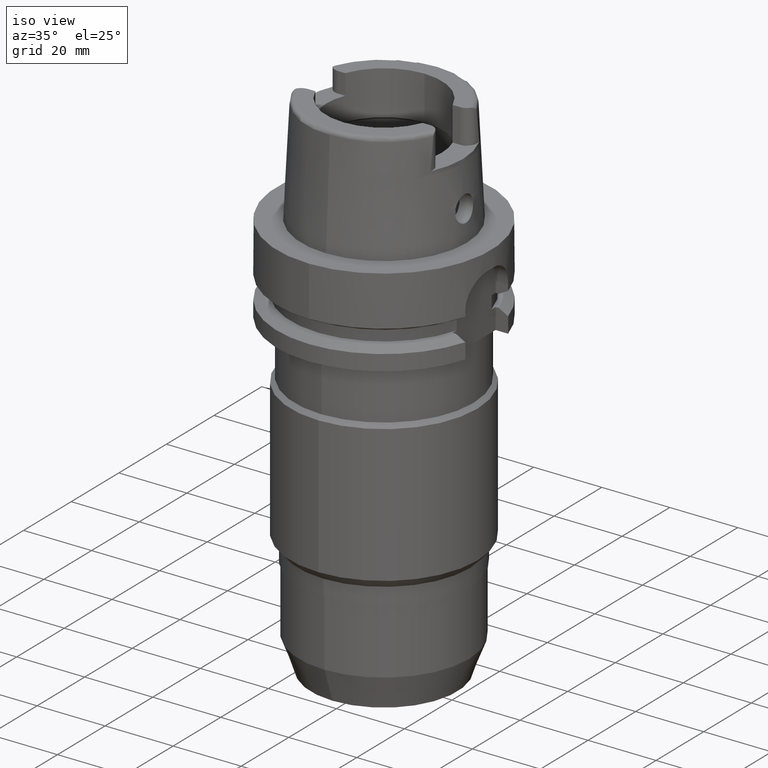
[diagram: clean part render]
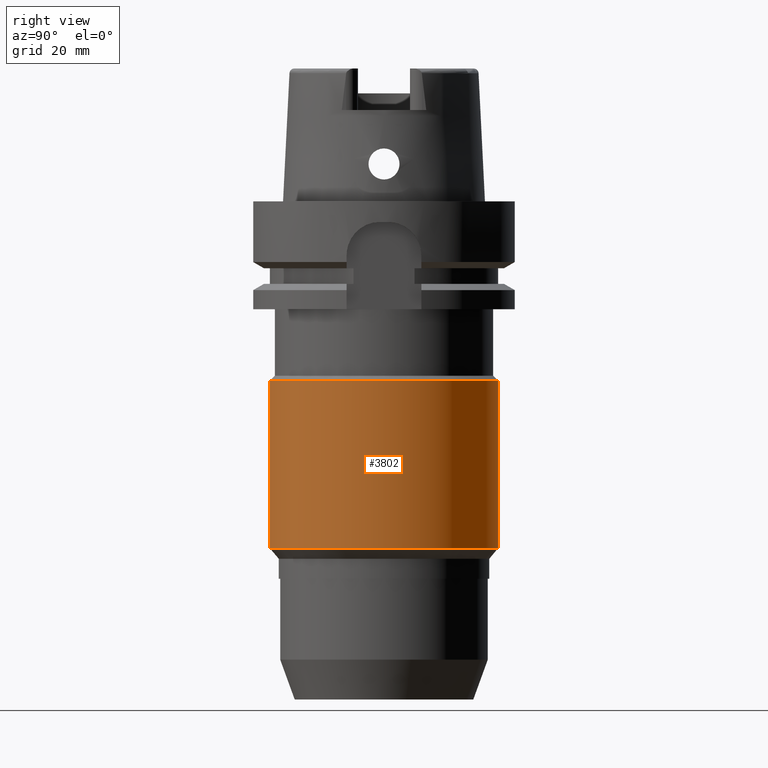
[diagram: tour spotlight — one face highlighted and labeled with its STEP entity id]
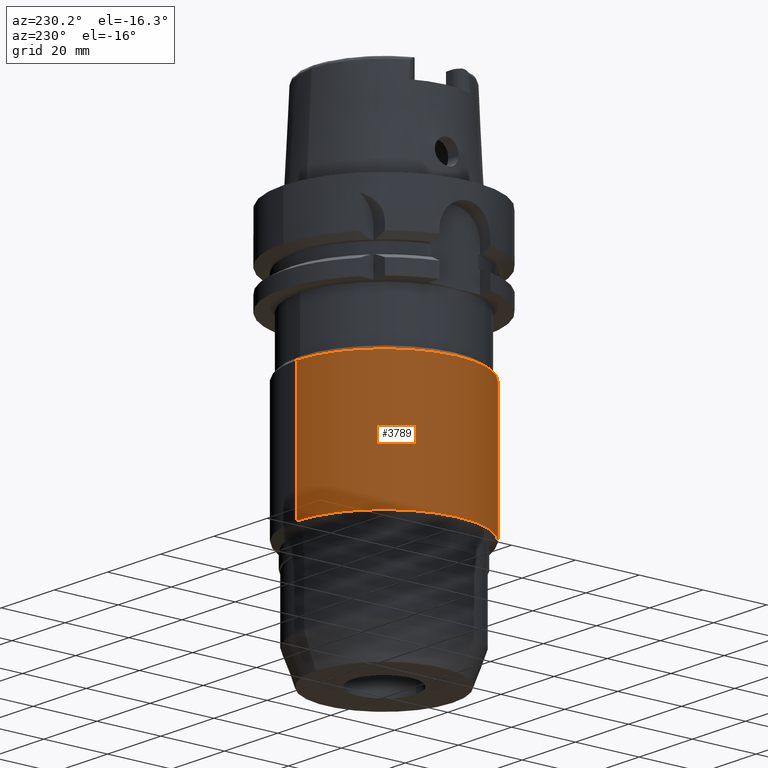
[diagram: tour spotlight — one face highlighted and labeled with its STEP entity id]
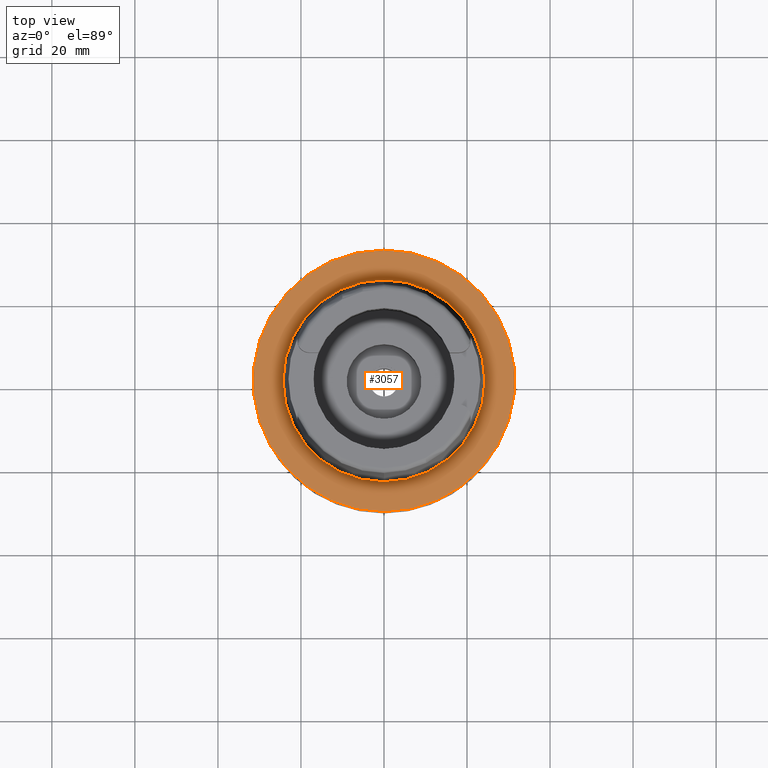
[diagram: tour spotlight — one face highlighted and labeled with its STEP entity id]
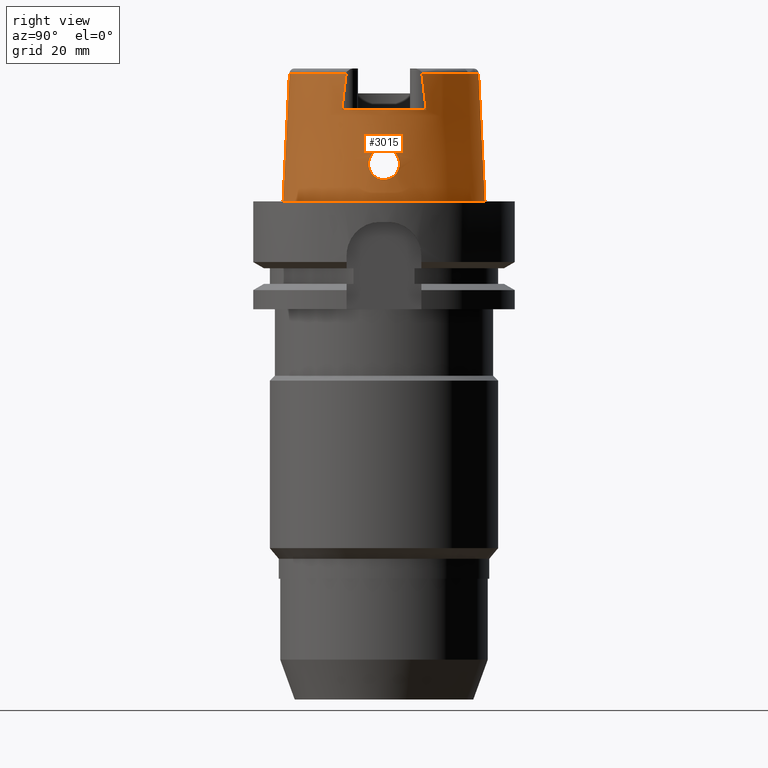
[diagram: tour spotlight — one face highlighted and labeled with its STEP entity id]
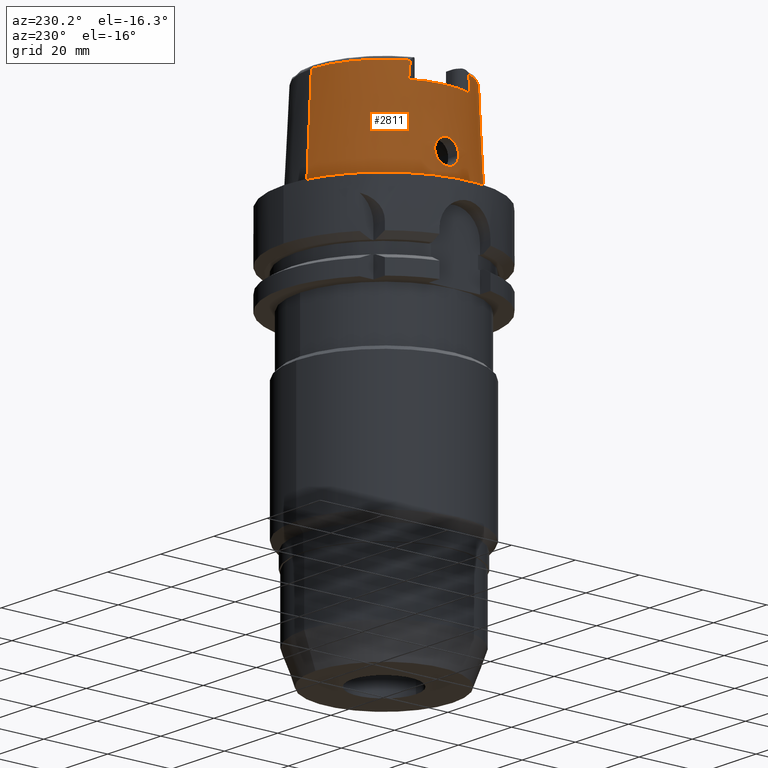
[diagram: tour spotlight — one face highlighted and labeled with its STEP entity id]
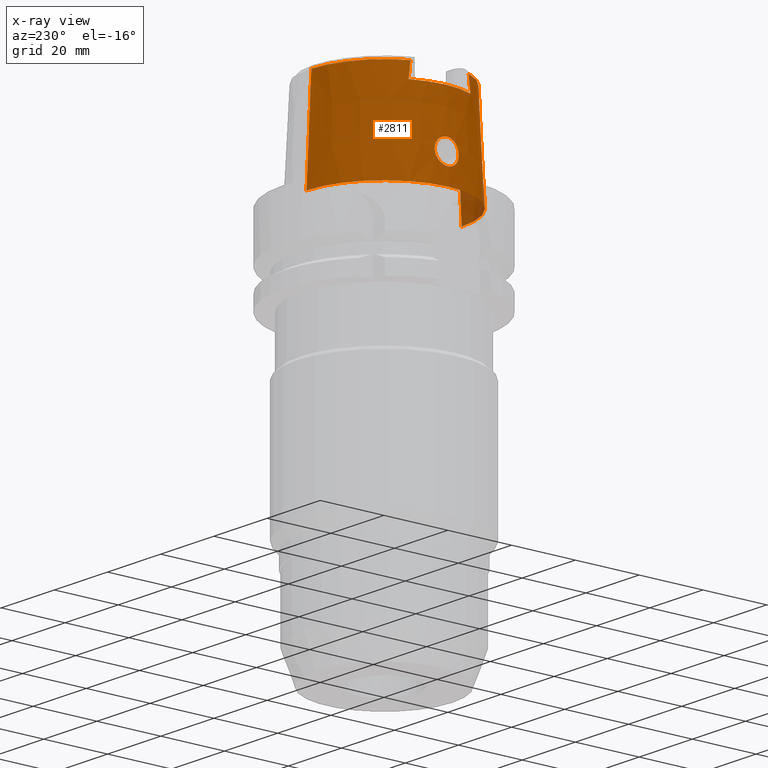
[diagram: x-ray of the same camera — body ghosted, this tour face saturated]
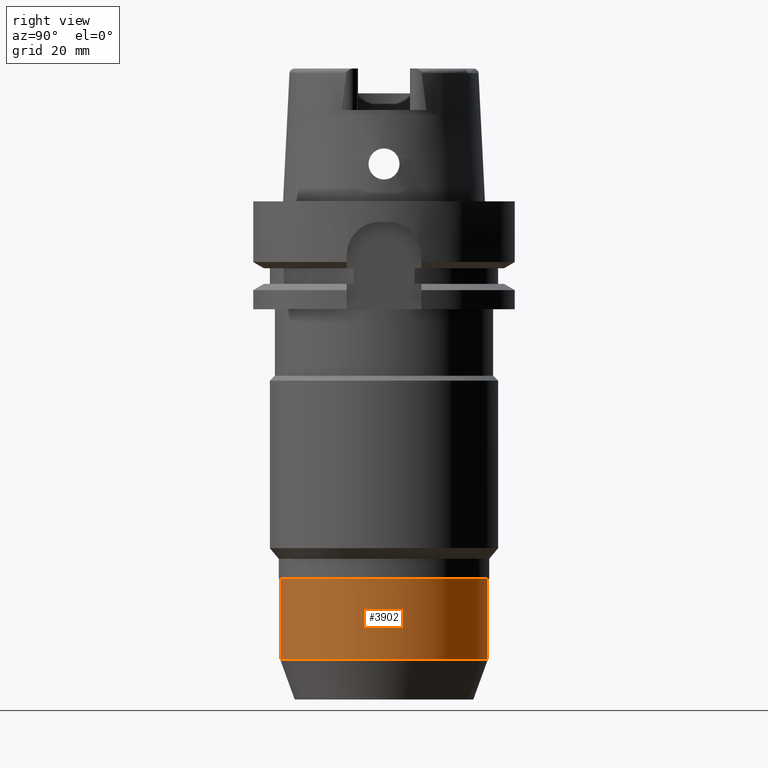
[diagram: tour spotlight — one face highlighted and labeled with its STEP entity id]
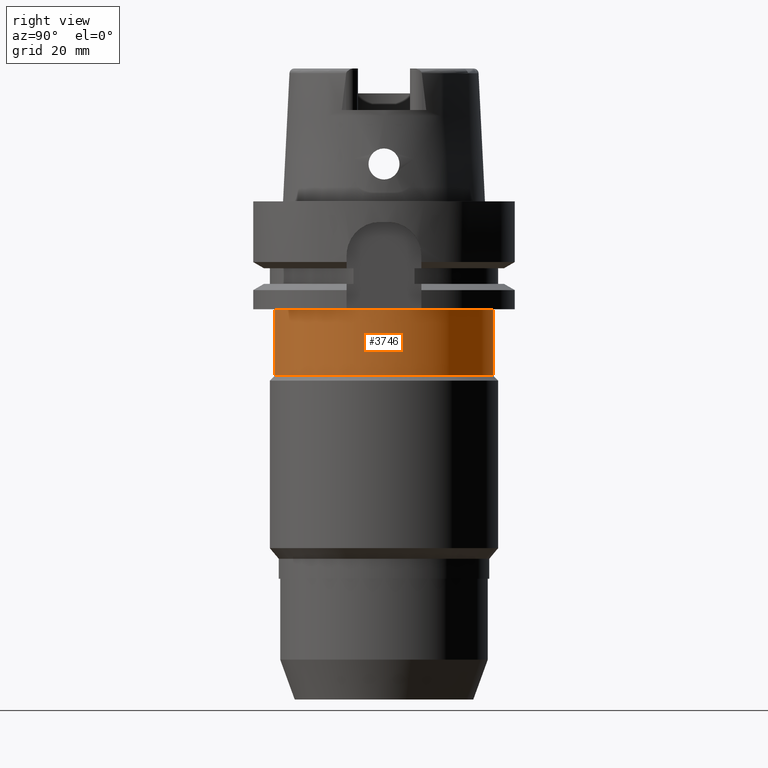
[diagram: tour spotlight — one face highlighted and labeled with its STEP entity id]
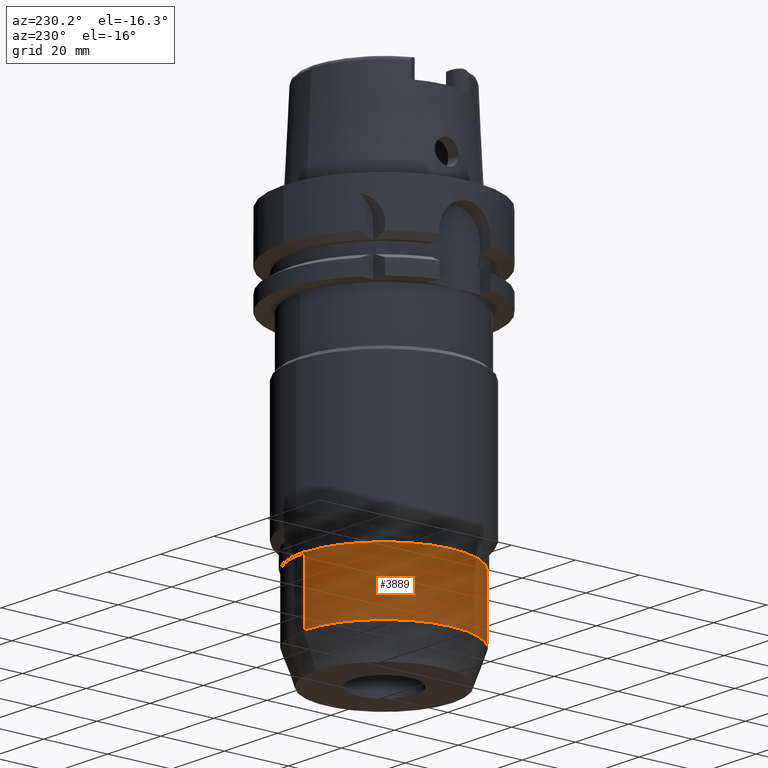
[diagram: tour spotlight — one face highlighted and labeled with its STEP entity id]
A machine part: a face-by-face anatomy tour. The part has 102 B-rep faces; the first image is the clean iso view, then the 8 largest visible faces are spotlighted one at a time (largest first), each with its STEP entity span.

Face 1 — right view, entity #3802. In plain terms, the highlighted cylindrical surface (partial cylindrical patch) has radius 27.5 mm, axis along (0, 0, 1).
Definition (entity closure, byte-faithful):
#1634=CARTESIAN_POINT('',(0.E0,0.E0,-4.32E1));
#1635=DIRECTION('',(0.E0,0.E0,-1.E0));
#1636=DIRECTION('',(0.E0,1.E0,0.E0));
#1637=AXIS2_PLACEMENT_3D('',#1634,#1635,#1636);
#1673=DIRECTION('',(0.E0,0.E0,-1.E0));
#1674=VECTOR('',#1673,4.033772977592E1);
#1675=CARTESIAN_POINT('',(0.E0,-2.75E1,-4.32E1));
#1676=LINE('',#1675,#1674);
#1680=DIRECTION('',(0.E0,0.E0,-1.E0));
#1681=VECTOR('',#1680,4.033772977592E1);
#1682=CARTESIAN_POINT('',(0.E0,2.75E1,-4.32E1));
#1683=LINE('',#1682,#1681);
#1702=CARTESIAN_POINT('',(0.E0,0.E0,-8.353772977592E1));
#1703=DIRECTION('',(0.E0,0.E0,1.E0));
#1704=DIRECTION('',(0.E0,-1.E0,0.E0));
#1705=AXIS2_PLACEMENT_3D('',#1702,#1703,#1704);
#2506=CARTESIAN_POINT('',(0.E0,2.75E1,-8.353772977592E1));
#2507=VERTEX_POINT('',#2506);
#2508=CARTESIAN_POINT('',(0.E0,-2.75E1,-8.353772977592E1));
#2509=VERTEX_POINT('',#2508);
#2510=CARTESIAN_POINT('',(0.E0,2.75E1,-4.32E1));
#2511=VERTEX_POINT('',#2510);
#2512=CARTESIAN_POINT('',(0.E0,-2.75E1,-4.32E1));
#2513=VERTEX_POINT('',#2512);
#3790=CARTESIAN_POINT('',(0.E0,0.E0,-1.276E2));
#3791=DIRECTION('',(0.E0,0.E0,1.E0));
#3792=DIRECTION('',(0.E0,1.E0,0.E0));
#3793=AXIS2_PLACEMENT_3D('',#3790,#3791,#3792);
#3794=CYLINDRICAL_SURFACE('',#3793,2.75E1);
#3795=ORIENTED_EDGE('',*,*,#3780,.T.);
#3797=ORIENTED_EDGE('',*,*,#3796,.F.);
#3798=ORIENTED_EDGE('',*,*,#3783,.F.);
#3799=ORIENTED_EDGE('',*,*,#3754,.F.);
#3800=EDGE_LOOP('',(#3795,#3797,#3798,#3799));
#3801=FACE_OUTER_BOUND('',#3800,.F.);
#1638=CIRCLE('',#1637,2.75E1);
#1706=CIRCLE('',#1705,2.75E1);
#3754=EDGE_CURVE('',#2511,#2513,#1638,.T.);
#3780=EDGE_CURVE('',#2511,#2507,#1683,.T.);
#3783=EDGE_CURVE('',#2513,#2509,#1676,.T.);
#3796=EDGE_CURVE('',#2509,#2507,#1706,.T.);
#3802=ADVANCED_FACE('',(#3801),#3794,.T.);

Face 2 — auxiliary view, entity #3789. In plain terms, the highlighted cylindrical surface (partial cylindrical patch) has radius 27.5 mm, axis along (0, 0, 1).
Definition (entity closure, byte-faithful):
#1665=CARTESIAN_POINT('',(0.E0,0.E0,-4.32E1));
#1666=DIRECTION('',(0.E0,0.E0,-1.E0));
#1667=DIRECTION('',(0.E0,-1.E0,0.E0));
#1668=AXIS2_PLACEMENT_3D('',#1665,#1666,#1667);
#1673=DIRECTION('',(0.E0,0.E0,-1.E0));
#1674=VECTOR('',#1673,4.033772977592E1);
#1675=CARTESIAN_POINT('',(0.E0,-2.75E1,-4.32E1));
#1676=LINE('',#1675,#1674);
#1680=DIRECTION('',(0.E0,0.E0,-1.E0));
#1681=VECTOR('',#1680,4.033772977592E1);
#1682=CARTESIAN_POINT('',(0.E0,2.75E1,-4.32E1));
#1683=LINE('',#1682,#1681);
#1710=CARTESIAN_POINT('',(0.E0,0.E0,-8.353772977592E1));
#1711=DIRECTION('',(0.E0,0.E0,1.E0));
#1712=DIRECTION('',(0.E0,1.E0,0.E0));
#1713=AXIS2_PLACEMENT_3D('',#1710,#1711,#1712);
#2506=CARTESIAN_POINT('',(0.E0,2.75E1,-8.353772977592E1));
#2507=VERTEX_POINT('',#2506);
#2508=CARTESIAN_POINT('',(0.E0,-2.75E1,-8.353772977592E1));
#2509=VERTEX_POINT('',#2508);
#2510=CARTESIAN_POINT('',(0.E0,2.75E1,-4.32E1));
#2511=VERTEX_POINT('',#2510);
#2512=CARTESIAN_POINT('',(0.E0,-2.75E1,-4.32E1));
#2513=VERTEX_POINT('',#2512);
#3775=CARTESIAN_POINT('',(0.E0,0.E0,-1.276E2));
#3776=DIRECTION('',(0.E0,0.E0,1.E0));
#3777=DIRECTION('',(0.E0,1.E0,0.E0));
#3778=AXIS2_PLACEMENT_3D('',#3775,#3776,#3777);
#3779=CYLINDRICAL_SURFACE('',#3778,2.75E1);
#3781=ORIENTED_EDGE('',*,*,#3780,.F.);
#3782=ORIENTED_EDGE('',*,*,#3770,.F.);
#3784=ORIENTED_EDGE('',*,*,#3783,.T.);
#3786=ORIENTED_EDGE('',*,*,#3785,.F.);
#3787=EDGE_LOOP('',(#3781,#3782,#3784,#3786));
#3788=FACE_OUTER_BOUND('',#3787,.F.);
#1669=CIRCLE('',#1668,2.75E1);
#1714=CIRCLE('',#1713,2.75E1);
#3770=EDGE_CURVE('',#2513,#2511,#1669,.T.);
#3780=EDGE_CURVE('',#2511,#2507,#1683,.T.);
#3783=EDGE_CURVE('',#2513,#2509,#1676,.T.);
#3785=EDGE_CURVE('',#2507,#2509,#1714,.T.);
#3789=ADVANCED_FACE('',(#3788),#3779,.T.);

Face 3 — top view, entity #3057. In plain terms, the highlighted planar face has unit normal (0, 0, 1).
Definition (entity closure, byte-faithful):
#618=CARTESIAN_POINT('',(0.E0,0.E0,3.410605131648E-13));
#619=DIRECTION('',(0.E0,0.E0,-1.E0));
#620=DIRECTION('',(0.E0,-1.E0,0.E0));
#621=AXIS2_PLACEMENT_3D('',#618,#619,#620);
#626=CARTESIAN_POINT('',(0.E0,0.E0,3.410605131648E-13));
#627=DIRECTION('',(0.E0,0.E0,-1.E0));
#628=DIRECTION('',(0.E0,1.E0,0.E0));
#629=AXIS2_PLACEMENT_3D('',#626,#627,#628);
#634=CARTESIAN_POINT('',(0.E0,0.E0,-7.389644451905E-13));
#635=DIRECTION('',(0.E0,0.E0,1.E0));
#636=DIRECTION('',(0.E0,-1.E0,0.E0));
#637=AXIS2_PLACEMENT_3D('',#634,#635,#636);
#642=CARTESIAN_POINT('',(0.E0,0.E0,-7.389644451905E-13));
#643=DIRECTION('',(0.E0,0.E0,1.E0));
#644=DIRECTION('',(0.E0,1.E0,0.E0));
#645=AXIS2_PLACEMENT_3D('',#642,#643,#644);
#2393=CARTESIAN_POINT('',(0.E0,-2.431503482329E1,-3.801403636317E-13));
#2394=VERTEX_POINT('',#2393);
#2395=CARTESIAN_POINT('',(0.E0,2.431503482329E1,-7.389644451905E-13));
#2396=VERTEX_POINT('',#2395);
#2671=CARTESIAN_POINT('',(0.E0,3.15E1,1.894780628694E-13));
#2672=VERTEX_POINT('',#2671);
#2673=CARTESIAN_POINT('',(0.E0,-3.15E1,3.410605131648E-13));
#2674=VERTEX_POINT('',#2673);
#3042=CARTESIAN_POINT('',(0.E0,0.E0,0.E0));
#3043=DIRECTION('',(0.E0,0.E0,1.E0));
#3044=DIRECTION('',(0.E0,1.E0,0.E0));
#3045=AXIS2_PLACEMENT_3D('',#3042,#3043,#3044);
#3046=PLANE('',#3045);
#3048=ORIENTED_EDGE('',*,*,#3047,.T.);
#3050=ORIENTED_EDGE('',*,*,#3049,.T.);
#3051=EDGE_LOOP('',(#3048,#3050));
#3052=FACE_OUTER_BOUND('',#3051,.F.);
#3053=ORIENTED_EDGE('',*,*,#3000,.T.);
#3054=ORIENTED_EDGE('',*,*,#2793,.T.);
#3055=EDGE_LOOP('',(#3053,#3054));
#3056=FACE_BOUND('',#3055,.F.);
#622=CIRCLE('',#621,3.15E1);
#630=CIRCLE('',#629,3.15E1);
#638=CIRCLE('',#637,2.431503482329E1);
#646=CIRCLE('',#645,2.431503482329E1);
#2793=EDGE_CURVE('',#2396,#2394,#646,.T.);
#3000=EDGE_CURVE('',#2394,#2396,#638,.T.);
#3047=EDGE_CURVE('',#2674,#2672,#622,.T.);
#3049=EDGE_CURVE('',#2672,#2674,#630,.T.);
#3057=ADVANCED_FACE('',(#3052,#3056),#3046,.T.);

Face 4 — right view, entity #3015. In plain terms, the highlighted conical surface has half-angle 2.862 deg.
Definition (entity closure, byte-faithful):
#180=DIRECTION('',(8.032179027582E-5,-4.993928193351E-2,-9.987522523971E-1));
#181=VECTOR('',#180,3.089848062794E1);
#182=CARTESIAN_POINT('',(-2.481821280836E-3,-2.277198688789E1,
3.085992712280E1));
#183=LINE('',#182,#181);
#276=CARTESIAN_POINT('',(2.086974110889E1,-9.111383544988E0,3.085992740154E1));
#281=CARTESIAN_POINT('',(0.E0,0.E0,3.085992712280E1));
#282=DIRECTION('',(0.E0,0.E0,-1.E0));
#283=DIRECTION('',(9.164655183266E-1,-4.001136759952E-1,0.E0));
#284=AXIS2_PLACEMENT_3D('',#281,#282,#283);
#369=CARTESIAN_POINT('',(0.E0,0.E0,2.2E1));
#370=DIRECTION('',(0.E0,0.E0,-1.E0));
#371=DIRECTION('',(8.989877876695E-1,4.379736951247E-1,0.E0));
#372=AXIS2_PLACEMENT_3D('',#369,#370,#371);
#493=CARTESIAN_POINT('',(0.E0,0.E0,3.085992712280E1));
#494=DIRECTION('',(0.E0,0.E0,-1.E0));
#495=DIRECTION('',(0.E0,1.E0,0.E0));
#496=AXIS2_PLACEMENT_3D('',#493,#494,#495);
#519=CARTESIAN_POINT('',(2.086999606042E1,1.016757672286E1,2.2E1));
#520=CARTESIAN_POINT('',(2.086999606042E1,1.005830459083E1,2.295713692900E1));
#521=CARTESIAN_POINT('',(2.087000073898E1,9.837693731168E0,2.486635586676E1));
#522=CARTESIAN_POINT('',(2.087000332294E1,9.498302441447E0,2.771500404696E1));
#523=CARTESIAN_POINT('',(2.086999175382E1,9.267368850798E0,2.960362234661E1));
#524=CARTESIAN_POINT('',(2.086999175382E1,9.150018522240E0,3.054599590786E1));
#529=CARTESIAN_POINT('',(2.086999175382E1,9.150018522240E0,3.054599590786E1));
#530=CARTESIAN_POINT('',(2.086999175382E1,9.145671884308E0,3.058090127811E1));
#531=CARTESIAN_POINT('',(2.086998416656E1,9.136990373315E0,3.065018241739E1));
#532=CARTESIAN_POINT('',(2.086989220690E1,9.124128539197E0,3.075517018053E1));
#533=CARTESIAN_POINT('',(2.086979784206E1,9.115619992016E0,3.082498881677E1));
#534=CARTESIAN_POINT('',(2.086974104061E1,9.111384044671E0,3.085992600054E1));
#539=DIRECTION('',(-8.032179027593E-5,4.993928193351E-2,-9.987522523971E-1));
#540=VECTOR('',#539,3.089848062794E1);
#541=CARTESIAN_POINT('',(2.481821280840E-3,2.277198688789E1,3.085992712280E1));
#542=LINE('',#541,#540);
#546=CARTESIAN_POINT('',(2.086974110889E1,-9.111383544988E0,3.085992740154E1));
#547=CARTESIAN_POINT('',(2.086979791523E1,-9.115619747689E0,3.082498808655E1));
#548=CARTESIAN_POINT('',(2.086989359503E1,-9.124126100485E0,3.075510751746E1));
#549=CARTESIAN_POINT('',(2.086997922485E1,-9.137002228671E0,3.065040319037E1));
#550=CARTESIAN_POINT('',(2.087000236792E1,-9.145647815676E0,3.058042815478E1));
#551=CARTESIAN_POINT('',(2.087000236792E1,-9.149994681381E0,3.054552122895E1));
#556=CARTESIAN_POINT('',(2.087000236792E1,-9.149994681381E0,3.054552122895E1));
#557=CARTESIAN_POINT('',(2.087000236792E1,-9.267237586258E0,2.960401770380E1));
#558=CARTESIAN_POINT('',(2.087000130158E1,-9.498473773453E0,2.771533041693E1));
#559=CARTESIAN_POINT('',(2.086999189259E1,-9.837864426117E0,2.486682029449E1));
#560=CARTESIAN_POINT('',(2.087001804958E1,-1.005818307170E1,2.295730285027E1));
#561=CARTESIAN_POINT('',(2.087001804958E1,-1.016747560172E1,2.2E1));
#566=CARTESIAN_POINT('',(2.367751368058E1,0.E0,1.275E1));
#567=CARTESIAN_POINT('',(2.367751368058E1,-3.273385166353E-1,1.275E1));
#568=CARTESIAN_POINT('',(2.366793739611E1,-9.825578415749E-1,1.266377520115E1));
#569=CARTESIAN_POINT('',(2.362981187385E1,-1.900011943677E0,1.228336346600E1));
#570=CARTESIAN_POINT('',(2.358191464843E1,-2.688103612006E0,1.167637135930E1));
#571=CARTESIAN_POINT('',(2.354357325824E1,-3.288821819792E0,1.088964615960E1));
#572=CARTESIAN_POINT('',(2.353292970101E1,-3.664996246160E0,9.975433437987E0));
#573=CARTESIAN_POINT('',(2.356155056667E1,-3.792201675265E0,9.003320277919E0));
#574=CARTESIAN_POINT('',(2.363132646140E1,-3.666190662775E0,8.028242756980E0));
#575=CARTESIAN_POINT('',(2.373410816693E1,-3.290345154405E0,7.112700953073E0));
#576=CARTESIAN_POINT('',(2.385148627792E1,-2.687575013186E0,6.322334536409E0));
#577=CARTESIAN_POINT('',(2.395990467095E1,-1.893937665800E0,5.712776965776E0));
#578=CARTESIAN_POINT('',(2.403486396305E1,-9.758430369737E-1,5.334736581590E0));
#579=CARTESIAN_POINT('',(2.405252611747E1,-3.244503059680E-1,5.25E0));
#580=CARTESIAN_POINT('',(2.405252611747E1,0.E0,5.25E0));
#585=CARTESIAN_POINT('',(2.405252611747E1,0.E0,5.25E0));
#586=CARTESIAN_POINT('',(2.405252611747E1,3.241919770980E-1,5.25E0));
#587=CARTESIAN_POINT('',(2.403484405509E1,9.733368598652E-1,5.334871576657E0));
#588=CARTESIAN_POINT('',(2.396118719106E1,1.880400859680E0,5.706266427877E0));
#589=CARTESIAN_POINT('',(2.385421018931E1,2.670830412544E0,6.306103450421E0));
#590=CARTESIAN_POINT('',(2.373660317905E1,3.279839280815E0,7.093351887860E0));
#591=CARTESIAN_POINT('',(2.363225113587E1,3.664170079433E0,8.016597200245E0));
#592=CARTESIAN_POINT('',(2.356145067359E1,3.793008602030E0,9.002656705615E0));
#593=CARTESIAN_POINT('',(2.353285683294E1,3.663794086830E0,9.980785517307E0));
#594=CARTESIAN_POINT('',(2.354373581532E1,3.286378123550E0,1.089302997587E1));
#595=CARTESIAN_POINT('',(2.358182946344E1,2.689291444687E0,1.167450189487E1));
#596=CARTESIAN_POINT('',(2.362959251261E1,1.904101539399E0,1.228103240625E1));
#597=CARTESIAN_POINT('',(2.366788493433E1,9.851087782521E-1,1.266332345074E1));
#598=CARTESIAN_POINT('',(2.367751368058E1,3.283688739533E-1,1.275E1));
#599=CARTESIAN_POINT('',(2.367751368058E1,0.E0,1.275E1));
#634=CARTESIAN_POINT('',(0.E0,0.E0,-7.389644451905E-13));
#635=DIRECTION('',(0.E0,0.E0,1.E0));
#636=DIRECTION('',(0.E0,-1.E0,0.E0));
#637=AXIS2_PLACEMENT_3D('',#634,#635,#636);
#2391=CARTESIAN_POINT('',(0.E0,-2.277198729362E1,3.085992712280E1));
#2392=VERTEX_POINT('',#2391);
#2393=CARTESIAN_POINT('',(0.E0,-2.431503482329E1,-3.801403636317E-13));
#2394=VERTEX_POINT('',#2393);
#2395=CARTESIAN_POINT('',(0.E0,2.431503482329E1,-7.389644451905E-13));
#2396=VERTEX_POINT('',#2395);
#2397=CARTESIAN_POINT('',(2.481821280840E-3,2.277198688789E1,3.085992712280E1));
#2398=VERTEX_POINT('',#2397);
#2401=CARTESIAN_POINT('',(2.086974092012E1,9.111384045666E0,3.085992712280E1));
#2402=VERTEX_POINT('',#2401);
#2403=VERTEX_POINT('',#276);
#2404=CARTESIAN_POINT('',(2.087E1,1.016755860605E1,2.2E1));
#2405=CARTESIAN_POINT('',(2.087E1,-1.016755860605E1,2.2E1));
#2406=VERTEX_POINT('',#2404);
#2407=VERTEX_POINT('',#2405);
#2408=VERTEX_POINT('',#524);
#2409=VERTEX_POINT('',#551);
#2410=VERTEX_POINT('',#566);
#2411=VERTEX_POINT('',#580);
#2988=CARTESIAN_POINT('',(0.E0,0.E0,1.542996356140E1));
#2989=DIRECTION('',(0.E0,0.E0,-1.E0));
#2990=DIRECTION('',(0.E0,-1.E0,0.E0));
#2991=AXIS2_PLACEMENT_3D('',#2988,#2989,#2990);
#2992=CONICAL_SURFACE('',#2991,2.354351105845E1,2.8625E0);
#2993=ORIENTED_EDGE('',*,*,#2902,.F.);
#2995=ORIENTED_EDGE('',*,*,#2994,.T.);
#2997=ORIENTED_EDGE('',*,*,#2996,.T.);
#2998=ORIENTED_EDGE('',*,*,#2980,.F.);
#2999=ORIENTED_EDGE('',*,*,#2795,.T.);
#3001=ORIENTED_EDGE('',*,*,#3000,.F.);
#3002=ORIENTED_EDGE('',*,*,#2791,.F.);
#3003=ORIENTED_EDGE('',*,*,#2832,.F.);
#3004=ORIENTED_EDGE('',*,*,#2850,.T.);
#3006=ORIENTED_EDGE('',*,*,#3005,.T.);
#3007=EDGE_LOOP('',(#2993,#2995,#2997,#2998,#2999,#3001,#3002,#3003,#3004,
#3006));
#3008=FACE_OUTER_BOUND('',#3007,.F.);
#3010=ORIENTED_EDGE('',*,*,#3009,.T.);
#3012=ORIENTED_EDGE('',*,*,#3011,.T.);
#3013=EDGE_LOOP('',(#3010,#3012));
#3014=FACE_BOUND('',#3013,.F.);
#285=CIRCLE('',#284,2.277198729362E1);
#373=CIRCLE('',#372,2.321499834175E1);
#497=CIRCLE('',#496,2.277198729362E1);
#525=B_SPLINE_CURVE_WITH_KNOTS('',3,(#519,#520,#521,#522,#523,#524),
.UNSPECIFIED.,.F.,.F.,(4,1,1,4),(0.E0,3.333333333333E-1,6.666666666667E-1,1.E0),
.UNSPECIFIED.);
#535=B_SPLINE_CURVE_WITH_KNOTS('',3,(#529,#530,#531,#532,#533,#534),
.UNSPECIFIED.,.F.,.F.,(4,1,1,4),(0.E0,3.333333333333E-1,6.666666666667E-1,1.E0),
.UNSPECIFIED.);
#552=B_SPLINE_CURVE_WITH_KNOTS('',3,(#546,#547,#548,#549,#550,#551),
.UNSPECIFIED.,.F.,.F.,(4,1,1,4),(0.E0,3.333333333333E-1,6.666666666667E-1,1.E0),
.UNSPECIFIED.);
#562=B_SPLINE_CURVE_WITH_KNOTS('',3,(#556,#557,#558,#559,#560,#561),
.UNSPECIFIED.,.F.,.F.,(4,1,1,4),(0.E0,3.333333333333E-1,6.666666666667E-1,1.E0),
.UNSPECIFIED.);
#581=B_SPLINE_CURVE_WITH_KNOTS('',3,(#566,#567,#568,#569,#570,#571,#572,#573,
#574,#575,#576,#577,#578,#579,#580),.UNSPECIFIED.,.F.,.F.,(4,1,1,1,1,1,1,1,1,1,
1,1,4),(0.E0,8.333333333333E-2,1.666666666667E-1,2.5E-1,3.333333333333E-1,
4.166666666667E-1,5.E-1,5.833333333333E-1,6.666666666667E-1,7.5E-1,
8.333333333333E-1,9.166666666667E-1,1.E0),.UNSPECIFIED.);
#600=B_SPLINE_CURVE_WITH_KNOTS('',3,(#585,#586,#587,#588,#589,#590,#591,#592,
#593,#594,#595,#596,#597,#598,#599),.UNSPECIFIED.,.F.,.F.,(4,1,1,1,1,1,1,1,1,1,
1,1,4),(0.E0,8.333333333333E-2,1.666666666667E-1,2.5E-1,3.333333333333E-1,
4.166666666667E-1,5.E-1,5.833333333333E-1,6.666666666667E-1,7.5E-1,
8.333333333333E-1,9.166666666667E-1,1.E0),.UNSPECIFIED.);
#638=CIRCLE('',#637,2.431503482329E1);
#2791=EDGE_CURVE('',#2392,#2394,#183,.T.);
#2795=EDGE_CURVE('',#2398,#2396,#542,.T.);
#2832=EDGE_CURVE('',#2403,#2392,#285,.T.);
#2850=EDGE_CURVE('',#2403,#2409,#552,.T.);
#2902=EDGE_CURVE('',#2406,#2407,#373,.T.);
#2980=EDGE_CURVE('',#2398,#2402,#497,.T.);
#2994=EDGE_CURVE('',#2406,#2408,#525,.T.);
#2996=EDGE_CURVE('',#2408,#2402,#535,.T.);
#3000=EDGE_CURVE('',#2394,#2396,#638,.T.);
#3005=EDGE_CURVE('',#2409,#2407,#562,.T.);
#3009=EDGE_CURVE('',#2410,#2411,#581,.T.);
#3011=EDGE_CURVE('',#2411,#2410,#600,.T.);
#3015=ADVANCED_FACE('',(#3008,#3014),#2992,.T.);

Face 5 — auxiliary view, entity #2811. An x-ray twin of the same camera follows (body ghosted, this face saturated) — the face is partly hidden behind the body. In plain terms, the highlighted conical surface has half-angle 2.862 deg.
Definition (entity closure, byte-faithful):
#69=CARTESIAN_POINT('',(0.E0,0.E0,2.6E1));
#70=DIRECTION('',(0.E0,0.E0,-1.E0));
#71=DIRECTION('',(-9.068002397791E-1,-4.215605829967E-1,0.E0));
#72=AXIS2_PLACEMENT_3D('',#69,#70,#71);
#160=CARTESIAN_POINT('',(-2.086999931535E1,-9.702216590561E0,2.6E1));
#161=CARTESIAN_POINT('',(-2.086999931535E1,-9.642048820361E0,2.650727061302E1));
#162=CARTESIAN_POINT('',(-2.087000013188E1,-9.520999784311E0,2.752034962291E1));
#163=CARTESIAN_POINT('',(-2.087000056538E1,-9.336893546791E0,2.903557629453E1));
#164=CARTESIAN_POINT('',(-2.086999859286E1,-9.212633972085E0,3.004273962856E1));
#165=CARTESIAN_POINT('',(-2.086999859286E1,-9.150003160547E0,3.054568941686E1));
#170=CARTESIAN_POINT('',(-2.086999859286E1,-9.150003160547E0,3.054568941686E1));
#171=CARTESIAN_POINT('',(-2.086999859286E1,-9.145656550786E0,3.058059438465E1));
#172=CARTESIAN_POINT('',(-2.086998097501E1,-9.136997528955E0,3.065032563437E1));
#173=CARTESIAN_POINT('',(-2.086989311877E1,-9.124126494727E0,3.075512926140E1));
#174=CARTESIAN_POINT('',(-2.086979784206E1,-9.115619992012E0,3.082498881681E1));
#175=CARTESIAN_POINT('',(-2.086974104061E1,-9.111384044678E0,3.085992600048E1));
#180=DIRECTION('',(8.032179027582E-5,-4.993928193351E-2,-9.987522523971E-1));
#181=VECTOR('',#180,3.089848062794E1);
#182=CARTESIAN_POINT('',(-2.481821280836E-3,-2.277198688789E1,
3.085992712280E1));
#183=LINE('',#182,#181);
#187=CARTESIAN_POINT('',(-2.086974110889E1,9.111383545002E0,3.085992740141E1));
#188=CARTESIAN_POINT('',(-2.086979791523E1,9.115619747676E0,3.082498808665E1));
#189=CARTESIAN_POINT('',(-2.086989333338E1,9.124126689012E0,3.075511924132E1));
#190=CARTESIAN_POINT('',(-2.086998014065E1,9.137000168781E0,3.065036215719E1));
#191=CARTESIAN_POINT('',(-2.087000040551E1,9.145652229693E0,3.058051608329E1));
#192=CARTESIAN_POINT('',(-2.087000040551E1,9.149999089201E0,3.054560915664E1));
#197=CARTESIAN_POINT('',(-2.087000040551E1,9.149999089201E0,3.054560915664E1));
#198=CARTESIAN_POINT('',(-2.087000040551E1,9.212612082852E0,3.004280312577E1));
#199=CARTESIAN_POINT('',(-2.087000020370E1,9.336923098287E0,2.903562847774E1));
#200=CARTESIAN_POINT('',(-2.086999867880E1,9.521029051541E0,2.752042416354E1));
#201=CARTESIAN_POINT('',(-2.087000294700E1,9.642028220330E0,2.650729690937E1));
#202=CARTESIAN_POINT('',(-2.087000294700E1,9.702199254904E0,2.6E1));
#207=CARTESIAN_POINT('',(-2.405252611747E1,7.219293415728E-14,5.25E0));
#208=CARTESIAN_POINT('',(-2.405252611747E1,-3.241869746E-1,5.25E0));
#209=CARTESIAN_POINT('',(-2.403484461044E1,-9.733222430590E-1,
5.334868901475E0));
#210=CARTESIAN_POINT('',(-2.396118973635E1,-1.880375352264E0,5.706253445513E0));
#211=CARTESIAN_POINT('',(-2.385421498837E1,-2.670800980719E0,6.306074556238E0));
#212=CARTESIAN_POINT('',(-2.373660725434E1,-3.279821761220E0,7.093321026556E0));
#213=CARTESIAN_POINT('',(-2.363225409826E1,-3.664161909827E0,8.016564221292E0));
#214=CARTESIAN_POINT('',(-2.356145186668E1,-3.793008677316E0,9.002632912190E0));
#215=CARTESIAN_POINT('',(-2.353285715397E1,-3.663802011440E0,9.980754356295E0));
#216=CARTESIAN_POINT('',(-2.354373497458E1,-3.286393023203E0,1.089300407555E1));
#217=CARTESIAN_POINT('',(-2.358182791375E1,-2.689315101460E0,1.167447830369E1));
#218=CARTESIAN_POINT('',(-2.362959140874E1,-1.904123067068E0,1.228102099175E1));
#219=CARTESIAN_POINT('',(-2.366788460884E1,-9.851234765923E-1,
1.266332049082E1));
#220=CARTESIAN_POINT('',(-2.367751368058E1,-3.283741908794E-1,1.275E1));
#221=CARTESIAN_POINT('',(-2.367751368058E1,0.E0,1.275E1));
#226=CARTESIAN_POINT('',(-2.367751368058E1,0.E0,1.275E1));
#227=CARTESIAN_POINT('',(-2.367751368058E1,3.273322439747E-1,1.275E1));
#228=CARTESIAN_POINT('',(-2.366793776223E1,9.825397932620E-1,1.266377848528E1));
#229=CARTESIAN_POINT('',(-2.362981346507E1,1.899980570422E0,1.228337985850E1));
#230=CARTESIAN_POINT('',(-2.358191685803E1,2.688069988412E0,1.167640504162E1));
#231=CARTESIAN_POINT('',(-2.354357443606E1,3.288800883549E0,1.088968257777E1));
#232=CARTESIAN_POINT('',(-2.353292925785E1,3.664984661831E0,9.975478484618E0));
#233=CARTESIAN_POINT('',(-2.356154877331E1,3.792202364372E0,9.003353484189E0));
#234=CARTESIAN_POINT('',(-2.363132347814E1,3.666199331519E0,8.028274762224E0));
#235=CARTESIAN_POINT('',(-2.373410501307E1,3.290358863245E0,7.112724654092E0));
#236=CARTESIAN_POINT('',(-2.385148275873E1,2.687596494324E0,6.322355826967E0));
#237=CARTESIAN_POINT('',(-2.395990280334E1,1.893956061351E0,5.712786499387E0));
#238=CARTESIAN_POINT('',(-2.403486346259E1,9.758552393202E-1,5.334739007395E0));
#239=CARTESIAN_POINT('',(-2.405252611747E1,3.244546408726E-1,5.25E0));
#240=CARTESIAN_POINT('',(-2.405252611747E1,7.219293415728E-14,5.25E0));
#289=CARTESIAN_POINT('',(0.E0,0.E0,3.085992712280E1));
#290=DIRECTION('',(0.E0,0.E0,-1.E0));
#291=DIRECTION('',(0.E0,-1.E0,0.E0));
#292=AXIS2_PLACEMENT_3D('',#289,#290,#291);
#485=CARTESIAN_POINT('',(0.E0,0.E0,3.085992712280E1));
#486=DIRECTION('',(0.E0,0.E0,-1.E0));
#487=DIRECTION('',(-9.164655183266E-1,4.001136759952E-1,0.E0));
#488=AXIS2_PLACEMENT_3D('',#485,#486,#487);
#539=DIRECTION('',(-8.032179027593E-5,4.993928193351E-2,-9.987522523971E-1));
#540=VECTOR('',#539,3.089848062794E1);
#541=CARTESIAN_POINT('',(2.481821280840E-3,2.277198688789E1,3.085992712280E1));
#542=LINE('',#541,#540);
#642=CARTESIAN_POINT('',(0.E0,0.E0,-7.389644451905E-13));
#643=DIRECTION('',(0.E0,0.E0,1.E0));
#644=DIRECTION('',(0.E0,1.E0,0.E0));
#645=AXIS2_PLACEMENT_3D('',#642,#643,#644);
#2359=CARTESIAN_POINT('',(-2.086999931535E1,-9.702216590561E0,2.6E1));
#2360=VERTEX_POINT('',#2359);
#2361=CARTESIAN_POINT('',(-2.087E1,9.702213322399E0,2.6E1));
#2362=VERTEX_POINT('',#2361);
#2387=VERTEX_POINT('',#187);
#2388=VERTEX_POINT('',#192);
#2389=VERTEX_POINT('',#165);
#2390=VERTEX_POINT('',#175);
#2391=CARTESIAN_POINT('',(0.E0,-2.277198729362E1,3.085992712280E1));
#2392=VERTEX_POINT('',#2391);
#2393=CARTESIAN_POINT('',(0.E0,-2.431503482329E1,-3.801403636317E-13));
#2394=VERTEX_POINT('',#2393);
#2395=CARTESIAN_POINT('',(0.E0,2.431503482329E1,-7.389644451905E-13));
#2396=VERTEX_POINT('',#2395);
#2397=CARTESIAN_POINT('',(2.481821280840E-3,2.277198688789E1,3.085992712280E1));
#2398=VERTEX_POINT('',#2397);
#2399=VERTEX_POINT('',#207);
#2400=VERTEX_POINT('',#221);
#2780=CARTESIAN_POINT('',(0.E0,0.E0,1.542996356140E1));
#2781=DIRECTION('',(0.E0,0.E0,-1.E0));
#2782=DIRECTION('',(0.E0,-1.E0,0.E0));
#2783=AXIS2_PLACEMENT_3D('',#2780,#2781,#2782);
#2784=CONICAL_SURFACE('',#2783,2.354351105845E1,2.8625E0);
#2785=ORIENTED_EDGE('',*,*,#2718,.F.);
#2787=ORIENTED_EDGE('',*,*,#2786,.T.);
#2788=ORIENTED_EDGE('',*,*,#2768,.T.);
#2790=ORIENTED_EDGE('',*,*,#2789,.F.);
#2792=ORIENTED_EDGE('',*,*,#2791,.T.);
#2794=ORIENTED_EDGE('',*,*,#2793,.F.);
#2796=ORIENTED_EDGE('',*,*,#2795,.F.);
#2798=ORIENTED_EDGE('',*,*,#2797,.F.);
#2800=ORIENTED_EDGE('',*,*,#2799,.T.);
#2802=ORIENTED_EDGE('',*,*,#2801,.T.);
#2803=EDGE_LOOP('',(#2785,#2787,#2788,#2790,#2792,#2794,#2796,#2798,#2800,
#2802));
#2804=FACE_OUTER_BOUND('',#2803,.F.);
#2806=ORIENTED_EDGE('',*,*,#2805,.T.);
#2808=ORIENTED_EDGE('',*,*,#2807,.T.);
#2809=EDGE_LOOP('',(#2806,#2808));
#2810=FACE_BOUND('',#2809,.F.);
#73=CIRCLE('',#72,2.301499170874E1);
#166=B_SPLINE_CURVE_WITH_KNOTS('',3,(#160,#161,#162,#163,#164,#165),
.UNSPECIFIED.,.F.,.F.,(4,1,1,4),(0.E0,3.333333333333E-1,6.666666666667E-1,1.E0),
.UNSPECIFIED.);
#176=B_SPLINE_CURVE_WITH_KNOTS('',3,(#170,#171,#172,#173,#174,#175),
.UNSPECIFIED.,.F.,.F.,(4,1,1,4),(0.E0,3.333333333333E-1,6.666666666667E-1,1.E0),
.UNSPECIFIED.);
#193=B_SPLINE_CURVE_WITH_KNOTS('',3,(#187,#188,#189,#190,#191,#192),
.UNSPECIFIED.,.F.,.F.,(4,1,1,4),(0.E0,3.333333333333E-1,6.666666666667E-1,1.E0),
.UNSPECIFIED.);
#203=B_SPLINE_CURVE_WITH_KNOTS('',3,(#197,#198,#199,#200,#201,#202),
.UNSPECIFIED.,.F.,.F.,(4,1,1,4),(0.E0,3.333333333333E-1,6.666666666667E-1,1.E0),
.UNSPECIFIED.);
#222=B_SPLINE_CURVE_WITH_KNOTS('',3,(#207,#208,#209,#210,#211,#212,#213,#214,
#215,#216,#217,#218,#219,#220,#221),.UNSPECIFIED.,.F.,.F.,(4,1,1,1,1,1,1,1,1,1,
1,1,4),(0.E0,8.333333333333E-2,1.666666666667E-1,2.5E-1,3.333333333333E-1,
4.166666666667E-1,5.E-1,5.833333333333E-1,6.666666666667E-1,7.5E-1,
8.333333333333E-1,9.166666666667E-1,1.E0),.UNSPECIFIED.);
#241=B_SPLINE_CURVE_WITH_KNOTS('',3,(#226,#227,#228,#229,#230,#231,#232,#233,
#234,#235,#236,#237,#238,#239,#240),.UNSPECIFIED.,.F.,.F.,(4,1,1,1,1,1,1,1,1,1,
1,1,4),(0.E0,8.333333333333E-2,1.666666666667E-1,2.5E-1,3.333333333333E-1,
4.166666666667E-1,5.E-1,5.833333333333E-1,6.666666666667E-1,7.5E-1,
8.333333333333E-1,9.166666666667E-1,1.E0),.UNSPECIFIED.);
#293=CIRCLE('',#292,2.277198729362E1);
#489=CIRCLE('',#488,2.277198729362E1);
#646=CIRCLE('',#645,2.431503482329E1);
#2718=EDGE_CURVE('',#2360,#2362,#73,.T.);
#2768=EDGE_CURVE('',#2389,#2390,#176,.T.);
#2786=EDGE_CURVE('',#2360,#2389,#166,.T.);
#2789=EDGE_CURVE('',#2392,#2390,#293,.T.);
#2791=EDGE_CURVE('',#2392,#2394,#183,.T.);
#2793=EDGE_CURVE('',#2396,#2394,#646,.T.);
#2795=EDGE_CURVE('',#2398,#2396,#542,.T.);
#2797=EDGE_CURVE('',#2387,#2398,#489,.T.);
#2799=EDGE_CURVE('',#2387,#2388,#193,.T.);
#2801=EDGE_CURVE('',#2388,#2362,#203,.T.);
#2805=EDGE_CURVE('',#2399,#2400,#222,.T.);
#2807=EDGE_CURVE('',#2400,#2399,#241,.T.);
#2811=ADVANCED_FACE('',(#2804,#2810),#2784,.T.);

Face 6 — right view, entity #3902. In plain terms, the highlighted cylindrical surface (partial cylindrical patch) has radius 25 mm, axis along (0, 0, 1).
Definition (entity closure, byte-faithful):
#1771=CARTESIAN_POINT('',(0.E0,0.E0,-9.09E1));
#1772=DIRECTION('',(0.E0,0.E0,-1.E0));
#1773=DIRECTION('',(0.E0,1.E0,0.E0));
#1774=AXIS2_PLACEMENT_3D('',#1771,#1772,#1773);
#1779=DIRECTION('',(0.E0,5.028456283841E-14,-1.E0));
#1780=VECTOR('',#1779,1.95E1);
#1781=CARTESIAN_POINT('',(0.E0,-2.5E1,-9.09E1));
#1782=LINE('',#1781,#1780);
#1786=DIRECTION('',(0.E0,-5.028456283841E-14,-1.E0));
#1787=VECTOR('',#1786,1.95E1);
#1788=CARTESIAN_POINT('',(0.E0,2.5E1,-9.09E1));
#1789=LINE('',#1788,#1787);
#1800=CARTESIAN_POINT('',(0.E0,0.E0,-1.104E2));
#1801=DIRECTION('',(0.E0,0.E0,1.E0));
#1802=DIRECTION('',(0.E0,-1.E0,0.E0));
#1803=AXIS2_PLACEMENT_3D('',#1800,#1801,#1802);
#2490=CARTESIAN_POINT('',(0.E0,2.5E1,-1.104E2));
#2491=VERTEX_POINT('',#2490);
#2492=CARTESIAN_POINT('',(0.E0,-2.5E1,-1.104E2));
#2493=VERTEX_POINT('',#2492);
#2494=CARTESIAN_POINT('',(0.E0,2.5E1,-9.09E1));
#2495=VERTEX_POINT('',#2494);
#2496=CARTESIAN_POINT('',(0.E0,-2.5E1,-9.09E1));
#2497=VERTEX_POINT('',#2496);
#3890=CARTESIAN_POINT('',(0.E0,0.E0,-1.276E2));
#3891=DIRECTION('',(0.E0,0.E0,1.E0));
#3892=DIRECTION('',(0.E0,1.E0,0.E0));
#3893=AXIS2_PLACEMENT_3D('',#3890,#3891,#3892);
#3894=CYLINDRICAL_SURFACE('',#3893,2.5E1);
#3895=ORIENTED_EDGE('',*,*,#3880,.T.);
#3897=ORIENTED_EDGE('',*,*,#3896,.F.);
#3898=ORIENTED_EDGE('',*,*,#3883,.F.);
#3899=ORIENTED_EDGE('',*,*,#3870,.F.);
#3900=EDGE_LOOP('',(#3895,#3897,#3898,#3899));
#3901=FACE_OUTER_BOUND('',#3900,.F.);
#1775=CIRCLE('',#1774,2.5E1);
#1804=CIRCLE('',#1803,2.5E1);
#3870=EDGE_CURVE('',#2495,#2497,#1775,.T.);
#3880=EDGE_CURVE('',#2495,#2491,#1789,.T.);
#3883=EDGE_CURVE('',#2497,#2493,#1782,.T.);
#3896=EDGE_CURVE('',#2493,#2491,#1804,.T.);
#3902=ADVANCED_FACE('',(#3901),#3894,.T.);

Face 7 — right view, entity #3746. In plain terms, the highlighted cylindrical surface (partial cylindrical patch) has radius 26.3 mm, axis along (0, 0, 1).
Definition (entity closure, byte-faithful):
#1046=CARTESIAN_POINT('',(0.E0,0.E0,-2.6E1));
#1047=DIRECTION('',(0.E0,0.E0,-1.E0));
#1048=DIRECTION('',(0.E0,1.E0,0.E0));
#1049=AXIS2_PLACEMENT_3D('',#1046,#1047,#1048);
#1613=DIRECTION('',(0.E0,0.E0,-1.E0));
#1614=VECTOR('',#1613,1.6E1);
#1615=CARTESIAN_POINT('',(0.E0,-2.63E1,-2.6E1));
#1616=LINE('',#1615,#1614);
#1620=DIRECTION('',(0.E0,0.E0,-1.E0));
#1621=VECTOR('',#1620,1.6E1);
#1622=CARTESIAN_POINT('',(0.E0,2.63E1,-2.6E1));
#1623=LINE('',#1622,#1621);
#1642=CARTESIAN_POINT('',(0.E0,0.E0,-4.2E1));
#1643=DIRECTION('',(0.E0,0.E0,1.E0));
#1644=DIRECTION('',(0.E0,-1.E0,0.E0));
#1645=AXIS2_PLACEMENT_3D('',#1642,#1643,#1644);
#2514=CARTESIAN_POINT('',(0.E0,2.63E1,-4.2E1));
#2515=VERTEX_POINT('',#2514);
#2516=CARTESIAN_POINT('',(0.E0,-2.63E1,-4.2E1));
#2517=VERTEX_POINT('',#2516);
#2518=CARTESIAN_POINT('',(0.E0,2.63E1,-2.6E1));
#2519=VERTEX_POINT('',#2518);
#2520=CARTESIAN_POINT('',(0.E0,-2.63E1,-2.6E1));
#2521=VERTEX_POINT('',#2520);
#3734=CARTESIAN_POINT('',(0.E0,0.E0,-1.276E2));
#3735=DIRECTION('',(0.E0,0.E0,1.E0));
#3736=DIRECTION('',(0.E0,1.E0,0.E0));
#3737=AXIS2_PLACEMENT_3D('',#3734,#3735,#3736);
#3738=CYLINDRICAL_SURFACE('',#3737,2.63E1);
#3739=ORIENTED_EDGE('',*,*,#3724,.T.);
#3741=ORIENTED_EDGE('',*,*,#3740,.F.);
#3742=ORIENTED_EDGE('',*,*,#3727,.F.);
#3743=ORIENTED_EDGE('',*,*,#3306,.F.);
#3744=EDGE_LOOP('',(#3739,#3741,#3742,#3743));
#3745=FACE_OUTER_BOUND('',#3744,.F.);
#1050=CIRCLE('',#1049,2.63E1);
#1646=CIRCLE('',#1645,2.63E1);
#3306=EDGE_CURVE('',#2519,#2521,#1050,.T.);
#3724=EDGE_CURVE('',#2519,#2515,#1623,.T.);
#3727=EDGE_CURVE('',#2521,#2517,#1616,.T.);
#3740=EDGE_CURVE('',#2517,#2515,#1646,.T.);
#3746=ADVANCED_FACE('',(#3745),#3738,.T.);

Face 8 — auxiliary view, entity #3889. In plain terms, the highlighted cylindrical surface (partial cylindrical patch) has radius 25 mm, axis along (0, 0, 1).
Definition (entity closure, byte-faithful):
#1763=CARTESIAN_POINT('',(0.E0,0.E0,-9.09E1));
#1764=DIRECTION('',(0.E0,0.E0,-1.E0));
#1765=DIRECTION('',(0.E0,-1.E0,0.E0));
#1766=AXIS2_PLACEMENT_3D('',#1763,#1764,#1765);
#1779=DIRECTION('',(0.E0,5.028456283841E-14,-1.E0));
#1780=VECTOR('',#1779,1.95E1);
#1781=CARTESIAN_POINT('',(0.E0,-2.5E1,-9.09E1));
#1782=LINE('',#1781,#1780);
#1786=DIRECTION('',(0.E0,-5.028456283841E-14,-1.E0));
#1787=VECTOR('',#1786,1.95E1);
#1788=CARTESIAN_POINT('',(0.E0,2.5E1,-9.09E1));
#1789=LINE('',#1788,#1787);
#1808=CARTESIAN_POINT('',(0.E0,0.E0,-1.104E2));
#1809=DIRECTION('',(0.E0,0.E0,1.E0));
#1810=DIRECTION('',(0.E0,1.E0,0.E0));
#1811=AXIS2_PLACEMENT_3D('',#1808,#1809,#1810);
#2490=CARTESIAN_POINT('',(0.E0,2.5E1,-1.104E2));
#2491=VERTEX_POINT('',#2490);
#2492=CARTESIAN_POINT('',(0.E0,-2.5E1,-1.104E2));
#2493=VERTEX_POINT('',#2492);
#2494=CARTESIAN_POINT('',(0.E0,2.5E1,-9.09E1));
#2495=VERTEX_POINT('',#2494);
#2496=CARTESIAN_POINT('',(0.E0,-2.5E1,-9.09E1));
#2497=VERTEX_POINT('',#2496);
#3875=CARTESIAN_POINT('',(0.E0,0.E0,-1.276E2));
#3876=DIRECTION('',(0.E0,0.E0,1.E0));
#3877=DIRECTION('',(0.E0,1.E0,0.E0));
#3878=AXIS2_PLACEMENT_3D('',#3875,#3876,#3877);
#3879=CYLINDRICAL_SURFACE('',#3878,2.5E1);
#3881=ORIENTED_EDGE('',*,*,#3880,.F.);
#3882=ORIENTED_EDGE('',*,*,#3868,.F.);
#3884=ORIENTED_EDGE('',*,*,#3883,.T.);
#3886=ORIENTED_EDGE('',*,*,#3885,.F.);
#3887=EDGE_LOOP('',(#3881,#3882,#3884,#3886));
#3888=FACE_OUTER_BOUND('',#3887,.F.);
#1767=CIRCLE('',#1766,2.5E1);
#1812=CIRCLE('',#1811,2.5E1);
#3868=EDGE_CURVE('',#2497,#2495,#1767,.T.);
#3880=EDGE_CURVE('',#2495,#2491,#1789,.T.);
#3883=EDGE_CURVE('',#2497,#2493,#1782,.T.);
#3885=EDGE_CURVE('',#2491,#2493,#1812,.T.);
#3889=ADVANCED_FACE('',(#3888),#3879,.T.);